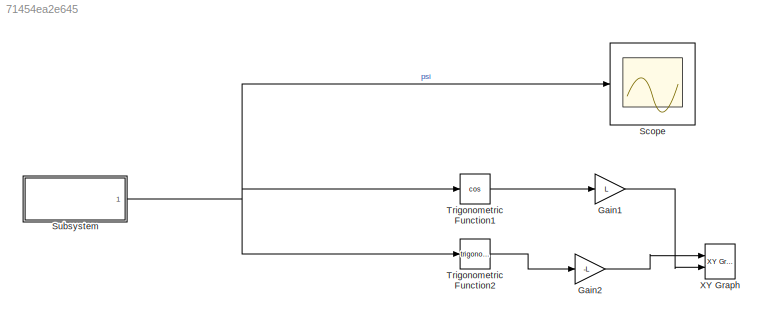
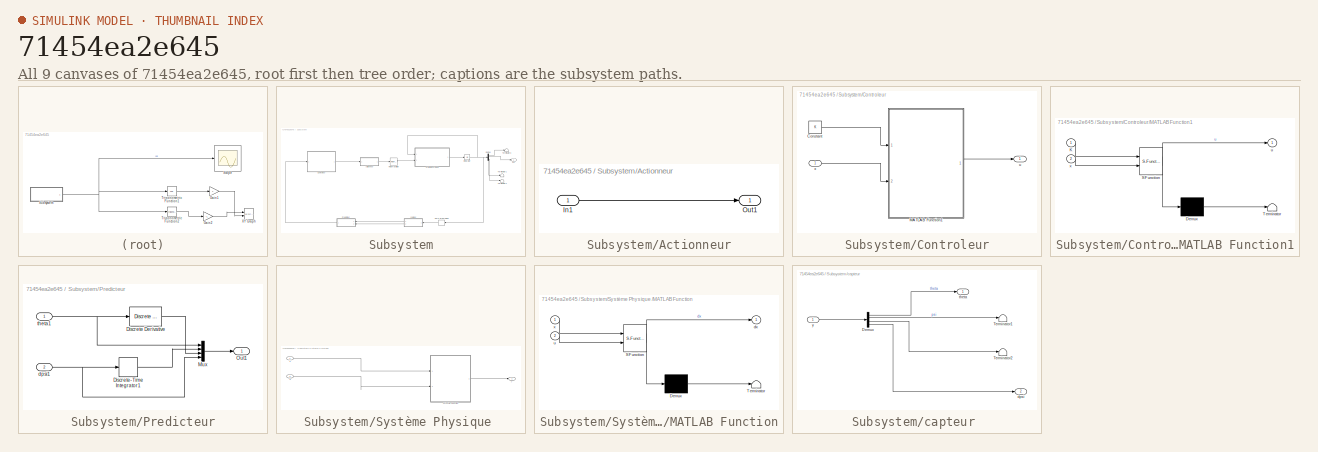
[diagram: thumbnail index - all 9 canvases of the model, root first then tree order]
MODEL slx_71454ea2e645
KIND model
CONFIG AbsTol = auto
CONFIG FixedStep = auto
CONFIG MaxStep = auto
CONFIG MinStep = auto
CONFIG RelTol = 1e-3
CONFIG SampleTimeConstraint = Unconstrained
CONFIG Solver = VariableStepAuto
CONFIG SolverMode = Auto
CONFIG SolverName = VariableStepAuto
CONFIG StartTime = 0.0
CONFIG StopTime = 10.0
BLOCK [Gain] Gain1
  Gain = L
  OutDataTypeStr = Inherit: Inherit via internal rule
  ParamDataTypeStr = Inherit: Inherit via internal rule
  SaturateOnIntegerOverflow = off
BLOCK [Gain] Gain2
  Gain = -L
  OutDataTypeStr = Inherit: Inherit via internal rule
  ParamDataTypeStr = Inherit: Inherit via internal rule
  SaturateOnIntegerOverflow = off
BLOCK [Scope] Scope
  Ports = [1]
  ScopeSpecificationString = Simulink.scopes.TimeScopeBlockCfg('CurrentConfiguration', extmgr.ConfigurationSet(extmgr.Configuration('Core','General UI',true),extmgr.Configuration('Core','Source UI',true),extmgr.Configuration('Sources','WiredSimulink',true),extmgr.Configuration('Visuals','Time Domain',true,'SerializedDisplays',{struct('MinYLimReal','-0.56757','MaxYLimReal','1.22662','YLabelReal','','MinYLimMag','0.00000','MaxY...<+1391ch>
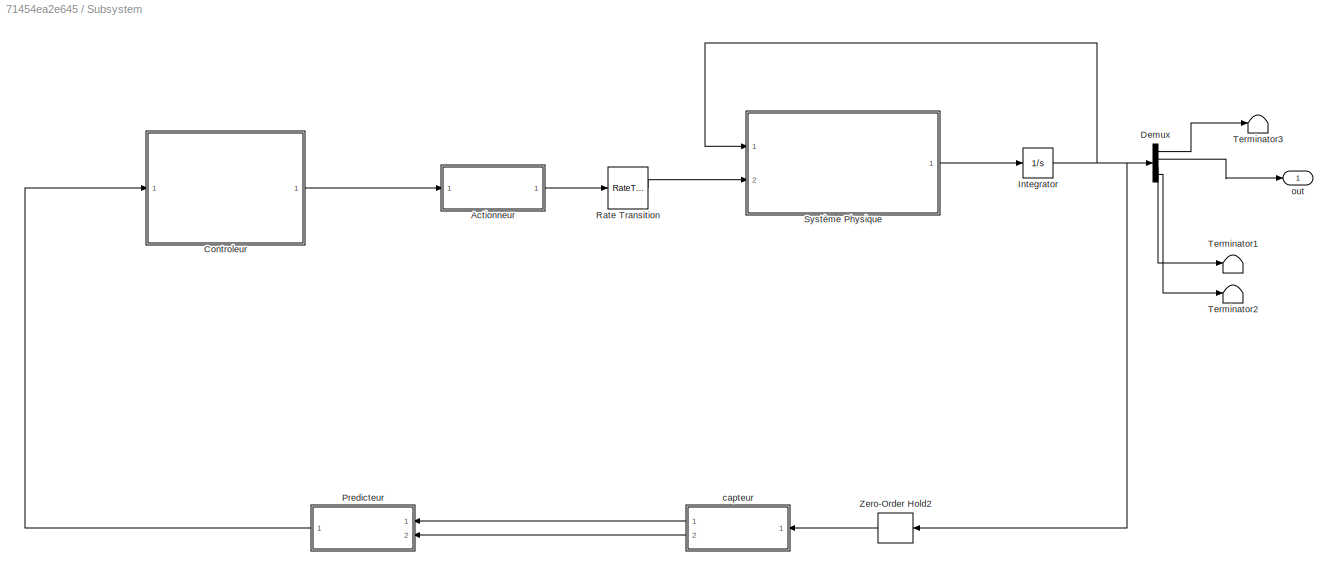
BLOCK [SubSystem] Subsystem
  Ports = [0, 1]
  RequestExecContextInheritance = off
  Variant = off
BLOCK [SubSystem] Subsystem/Actionneur
  Ports = [1, 1]
  RequestExecContextInheritance = off
  Variant = off
BLOCK [Inport] Subsystem/Actionneur/In1
  IconDisplay = Port number
BLOCK [Outport] Subsystem/Actionneur/Out1
  IconDisplay = Port number
BLOCK [SubSystem] Subsystem/Controleur
  Ports = [1, 1]
  RequestExecContextInheritance = off
  Variant = off
BLOCK [Constant] Subsystem/Controleur/Constant
  Value = K
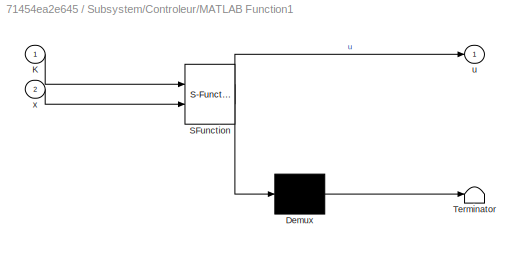
BLOCK [SubSystem] Subsystem/Controleur/MATLAB Function1
  ErrorFcn = Stateflow.Translate.translate
  PermitHierarchicalResolution = ExplicitOnly
  Ports = [2, 1]
  RequestExecContextInheritance = off
  SFBlockType = MATLAB Function
  TreatAsAtomicUnit = on
  Variant = off
BLOCK [Demux] Subsystem/Controleur/MATLAB Function1/ Demux 
  Outputs = 1
  Ports = [1, 1]
BLOCK [S-Function] Subsystem/Controleur/MATLAB Function1/ SFunction 
  EnableBusSupport = on
  FunctionName = sf_sfun
  PortCounts = [2 2]
  Ports = [2, 2]
  SFunctionDeploymentMode = off
  Tag = Stateflow S-Function tp4_partie4 3
BLOCK [Terminator] Subsystem/Controleur/MATLAB Function1/ Terminator 
BLOCK [Inport] Subsystem/Controleur/MATLAB Function1/K
  IconDisplay = Port number
BLOCK [Outport] Subsystem/Controleur/MATLAB Function1/u
  IconDisplay = Port number
BLOCK [Inport] Subsystem/Controleur/MATLAB Function1/x
  IconDisplay = Port number
  Port = 2
BLOCK [Outport] Subsystem/Controleur/u
  IconDisplay = Port number
BLOCK [Inport] Subsystem/Controleur/x
  IconDisplay = Port number
BLOCK [Demux] Subsystem/Demux
  DisplayOption = bar
  Ports = [1, 4]
BLOCK [Integrator] Subsystem/Integrator
  InitialCondition = [pi/4 pi/3 0 0]
  Ports = [1, 1]
BLOCK [SubSystem] Subsystem/Predicteur
  Ports = [2, 1]
  RequestExecContextInheritance = off
  Variant = off
BLOCK [Reference] Subsystem/Predicteur/Discrete Derivative  REF=simulink/Discrete/Discrete Derivative
  Ports = [1, 1]
  SourceBlock = simulink/Discrete/Discrete Derivative
  SourceType = Discrete Derivative
BLOCK [DiscreteIntegrator] Subsystem/Predicteur/Discrete-Time Integrator1
  ICPrevOutput = DiscIntNeverNeededParam
  ICPrevScaledInput = DiscIntNeverNeededParam
  InitialConditionSetting = State (most efficient)
  Ports = [1, 1]
  SampleTime = -1
BLOCK [Mux] Subsystem/Predicteur/Mux
  DisplayOption = bar
  Ports = [4, 1]
BLOCK [Outport] Subsystem/Predicteur/Out1
  IconDisplay = Port number
  PortDimensions = 4
BLOCK [Inport] Subsystem/Predicteur/dpsi1 
  IconDisplay = Port number
  Port = 2
  PortDimensions = 1
BLOCK [Inport] Subsystem/Predicteur/theta1
  IconDisplay = Port number
  PortDimensions = 1
BLOCK [RateTransition] Subsystem/Rate Transition
  OutPortSampleTime = 0.002
BLOCK [SubSystem] Subsystem/Système Physique 
  Ports = [2, 1]
  RequestExecContextInheritance = off
  Variant = off
BLOCK [SubSystem] Subsystem/Système Physique /MATLAB Function
  ErrorFcn = Stateflow.Translate.translate
  PermitHierarchicalResolution = ExplicitOnly
  Ports = [2, 1]
  RequestExecContextInheritance = off
  SFBlockType = MATLAB Function
  TreatAsAtomicUnit = on
  Variant = off
BLOCK [Demux] Subsystem/Système Physique /MATLAB Function/ Demux 
  Outputs = 1
  Ports = [1, 1]
BLOCK [S-Function] Subsystem/Système Physique /MATLAB Function/ SFunction 
  EnableBusSupport = on
  FunctionName = sf_sfun
  PortCounts = [2 2]
  Ports = [2, 2]
  SFunctionDeploymentMode = off
  Tag = Stateflow S-Function tp4_partie4 4
BLOCK [Terminator] Subsystem/Système Physique /MATLAB Function/ Terminator 
BLOCK [Outport] Subsystem/Système Physique /MATLAB Function/dx
  IconDisplay = Port number
BLOCK [Inport] Subsystem/Système Physique /MATLAB Function/u
  IconDisplay = Port number
  Port = 2
BLOCK [Inport] Subsystem/Système Physique /MATLAB Function/x
  IconDisplay = Port number
BLOCK [Inport] Subsystem/Système Physique /u
  IconDisplay = Port number
  Port = 2
BLOCK [Inport] Subsystem/Système Physique /x
  IconDisplay = Port number
BLOCK [Outport] Subsystem/Système Physique /y 
  IconDisplay = Port number
BLOCK [Terminator] Subsystem/Terminator1
BLOCK [Terminator] Subsystem/Terminator2
BLOCK [Terminator] Subsystem/Terminator3
BLOCK [ZeroOrderHold] Subsystem/Zero-Order Hold2
  SampleTime = 0.002
BLOCK [SubSystem] Subsystem/capteur 
  Ports = [1, 2]
  RequestExecContextInheritance = off
  Variant = off
BLOCK [Demux] Subsystem/capteur /Demux
  DisplayOption = bar
  Ports = [1, 4]
BLOCK [Terminator] Subsystem/capteur /Terminator1
BLOCK [Terminator] Subsystem/capteur /Terminator2
BLOCK [Outport] Subsystem/capteur /dpsi
  IconDisplay = Port number
  Port = 2
  PortDimensions = 1
BLOCK [Outport] Subsystem/capteur /theta 
  IconDisplay = Port number
  PortDimensions = 1
BLOCK [Inport] Subsystem/capteur /y
  IconDisplay = Port number
  PortDimensions = 4
BLOCK [Outport] Subsystem/out 
  IconDisplay = Port number
BLOCK [Trigonometry] Trigonometric Function1
  Operator = cos
  Ports = [1, 1]
BLOCK [Trigonometry] Trigonometric Function2
  Ports = [1, 1]
BLOCK [Reference] XY Graph  REF=simulink/Sinks/XY Graph
  Ports = [2]
  SourceBlock = simulink/Sinks/XY Graph
  SourceType = XY scope.
LINE Gain1:1 -> XY Graph:2
LINE Gain2:1 -> XY Graph:1
LINE Subsystem/Actionneur/In1:1 -> Subsystem/Actionneur/Out1:1
LINE Subsystem/Actionneur:1 -> Subsystem/Rate Transition:1
LINE Subsystem/Controleur/Constant:1 -> Subsystem/Controleur/MATLAB Function1:1
LINE Subsystem/Controleur/MATLAB Function1:1 -> Subsystem/Controleur/u:1
LINE Subsystem/Controleur/x:1 -> Subsystem/Controleur/MATLAB Function1:2
LINE Subsystem/Controleur:1 -> Subsystem/Actionneur:1
LINE Subsystem/Demux:1 -> Subsystem/Terminator3:1
LINE Subsystem/Demux:2 -> Subsystem/out :1
LINE Subsystem/Demux:3 -> Subsystem/Terminator1:1
LINE Subsystem/Demux:4 -> Subsystem/Terminator2:1
NET Subsystem/Integrator:1 -> Subsystem/Demux:1, Subsystem/Système Physique :1, Subsystem/Zero-Order Hold2:1
LINE Subsystem/Predicteur/Discrete Derivative:1 -> Subsystem/Predicteur/Mux:3
LINE Subsystem/Predicteur/Discrete-Time Integrator1:1 -> Subsystem/Predicteur/Mux:2
LINE Subsystem/Predicteur/Mux:1 -> Subsystem/Predicteur/Out1:1
NET Subsystem/Predicteur/dpsi1 :1 -> Subsystem/Predicteur/Discrete-Time Integrator1:1, Subsystem/Predicteur/Mux:4
NET Subsystem/Predicteur/theta1:1 -> Subsystem/Predicteur/Discrete Derivative:1, Subsystem/Predicteur/Mux:1
LINE Subsystem/Predicteur:1 -> Subsystem/Controleur:1
LINE Subsystem/Rate Transition:1 -> Subsystem/Système Physique :2
LINE Subsystem/Système Physique /MATLAB Function:1 -> Subsystem/Système Physique /y :1
LINE Subsystem/Système Physique /u:1 -> Subsystem/Système Physique /MATLAB Function:2
LINE Subsystem/Système Physique /x:1 -> Subsystem/Système Physique /MATLAB Function:1
LINE Subsystem/Système Physique :1 -> Subsystem/Integrator:1
LINE Subsystem/Zero-Order Hold2:1 -> Subsystem/capteur :1
LINE Subsystem/capteur /Demux:1 -> Subsystem/capteur /theta :1
LINE Subsystem/capteur /Demux:2 -> Subsystem/capteur /Terminator1:1
LINE Subsystem/capteur /Demux:3 -> Subsystem/capteur /Terminator2:1
LINE Subsystem/capteur /Demux:4 -> Subsystem/capteur /dpsi:1
LINE Subsystem/capteur /y:1 -> Subsystem/capteur /Demux:1
LINE Subsystem/capteur :1 -> Subsystem/Predicteur:1
LINE Subsystem/capteur :2 -> Subsystem/Predicteur:2
NET Subsystem:1 -> Scope:1, Trigonometric Function1:1, Trigonometric Function2:1
LINE Trigonometric Function1:1 -> Gain1:1
LINE Trigonometric Function2:1 -> Gain2:1
note: NET lines group one-source signal fan-out (src -> all destinations, sorted); 1:1 wires keep LINE
CHART Subsystem/Controleur/MATLAB Function1 states=1 transitions=1
  STATE_LABEL 'eML_blk_kernel()'
  STATE_LABEL "SCRIPT:\n%Controleur\nfunction u = fcn(K, x)\n%#codegen\nue=0;\n%K=[20;10];\n%K = [0.67; 19.9053; 1.0747; 1.9614];\n\n\nxe = [0;0;0;0];\n\nu = ue + K'*(x - xe);\n\n"
CHART Subsystem/Système Physique
/MATLAB Function states=1 transitions=1
  STATE_LABEL 'eML_blk_kernel()'
  STATE_LABEL 'SCRIPT:\nfunction dx   = fonction( x, u)\n%   Dynamic equations of motion of the segway on an axis.\n%   Inputs: - x = [theta psi dtheta dpsi]\n%               theta: average angle of the wheels      [rad]\n%               psi: body pitch angle                   [rad]\n%               dtheta: average velocity of the wheels  [rad/s]\n%               dpsi: body pitch velocity               [rad/s]\n%       ...<+2036ch>'
